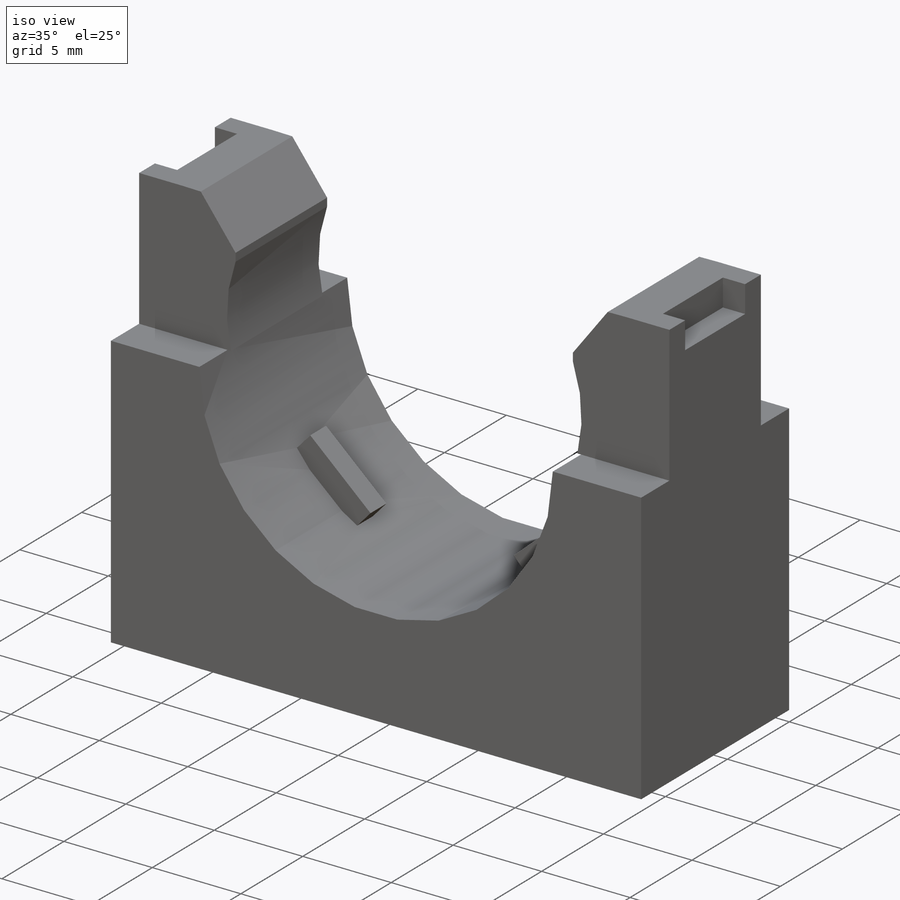
[diagram: iso view]
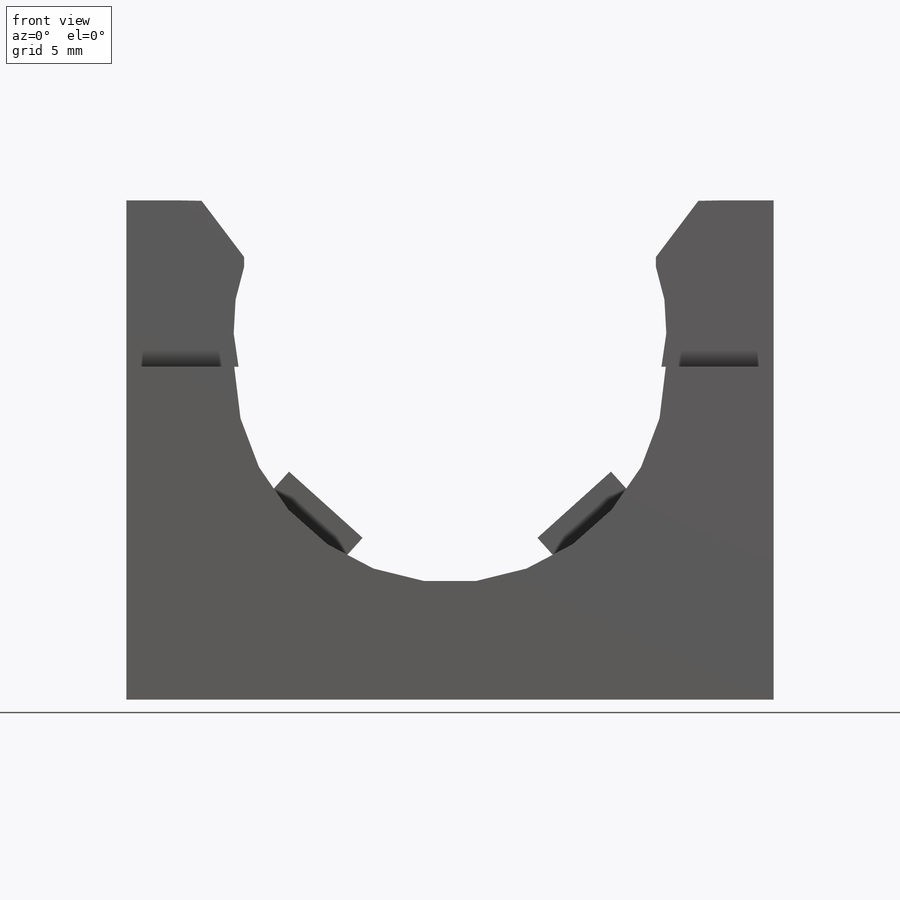
[diagram: front view]
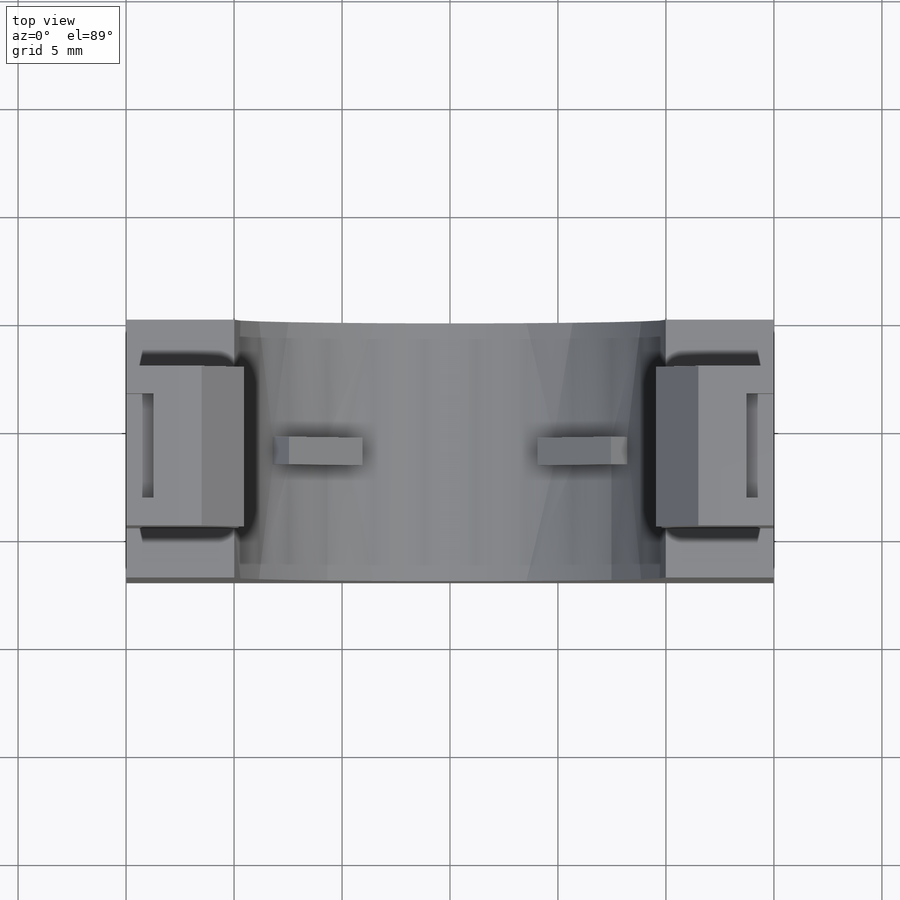
[diagram: top view]
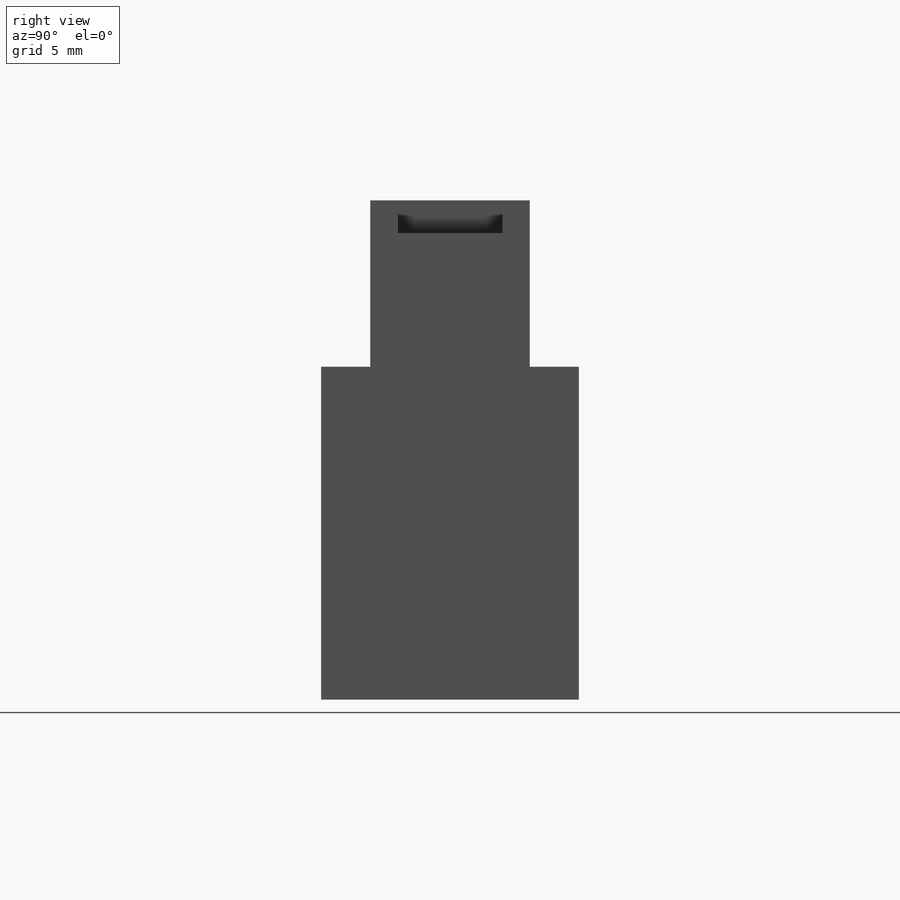
[diagram: right view]
SOLIDWORKS PART (.sldprt)
format: sldprt  version: not decoded by parser v0  size: 311,808 bytes
history: native  units: mm
features: sketch x8, cut_extrude x5, extrude x2, material x1, plane x1, cut_revolve x1 + 1 further entry (+14 scaffold rows collapsed)
feature tree (33):
  scaffold x14  (default folders/planes/origin — collapsed)
  material  "Material <not specified>"
  "Design Table"
  sketch  "Sketch1"  dims[c1.D3=~24.128241mm c1.D4=~9.990667mm c1.B=29.972mm c1.C=23.114mm c2.D3=31.6865mm c2.D4=36.83mm c3.D3=~15.409333mm]
  extrude  "Extrude1"  Depth=11.938mm A=11.938mm
  sketch  "Sketch2"  dims[c1.D1=~49.27285mm c1.D3=~7.866062mm c1.D2=42.164mm c1.D4=7.239mm c1.D5=~7.738712mm c2.D5=126.96deg c2.D6=7.366mm c3.D5=6.223mm c3.D3=4.445mm c3.D4=~3.024187mm c4.D5=14.732mm c4.D6=58.928mm c5.D6=~19.793466deg c5.D5=~17.225927mm c6.D6=~29.450957mm c6.D5=~7.342187mm c7.D6=12.827mm c7.D7=~5.453062mm c7.D8=~4.627562mm c7.D1=~0.199813mm c7.D2=~7.779738mm c8.D2=29.0deg c9.D2=~3.024187mm]
  cut_extrude  "Cut-Extrude1"  [1 undecoded]
  sketch  "Sketch3"  dims[c1.D1=14.478mm c1.D2=21.209mm c1.D3=7.239mm c1.D4=21.209mm c2.D1=21.209mm c2.D2=~2.27457mm]
  cut_extrude  "Cut-Extrude2"  [1 undecoded]
  sketch  "Sketch4"  dims[D1=~0.79375mm D2=~0.79375mm]
  cut_extrude  "Cut-Extrude3"  Depth=0.254mm
  sketch  "Sketch5"  dims[c1.D1=~1.17094mm c1.D2=11.938mm c1.D3=5.969mm c2.D1=11.938mm c2.D2=~1.173742mm c3.D1=~1.275715mm]
  cut_extrude  "Cut-Extrude4"  Depth=1.524mm
  plane  "Plane1"
  sketch  "Sketch6"  dims[E=9.906mm D=5.08mm D3=2.54mm D4=5.08mm]
  cut_revolve  "Cut-Revolve1"  Angle=360deg
  sketch  "Sketch7"  dims[c1.D1=~22.168377mm c2.D1=42.0deg c2.D2=~11.937492mm c2.D3=3.556mm c2.D4=~7.988081mm c3.D4=96.0deg c3.D1=~19.151232mm c4.D1=42.0deg c4.D2=~12.893976mm c5.D2=90.0deg c6.D2=~4.582583mm c6.D3=~1.130653mm]
  extrude  "Extrude2"  Depth=1.27mm
  sketch  "Sketch8"  dims[c1.D1=~0.72329mm c1.D2=9.0mm c1.D3=~15.409333mm c2.D1=1.9685mm c2.D2=2.6035mm]
  cut_extrude  "Cut-Extrude5"  [1 undecoded]
decode coverage: 13 of 16 modeling features carry decoded parameters; 1 rows unclassified (native names shown)
note: ~ marks probable driven/reference dimensions
note: 3 parameter values undecoded
summary: no parameter record found for 3 features
note: suppression state not decoded; provenance and decode notes live in map.json
